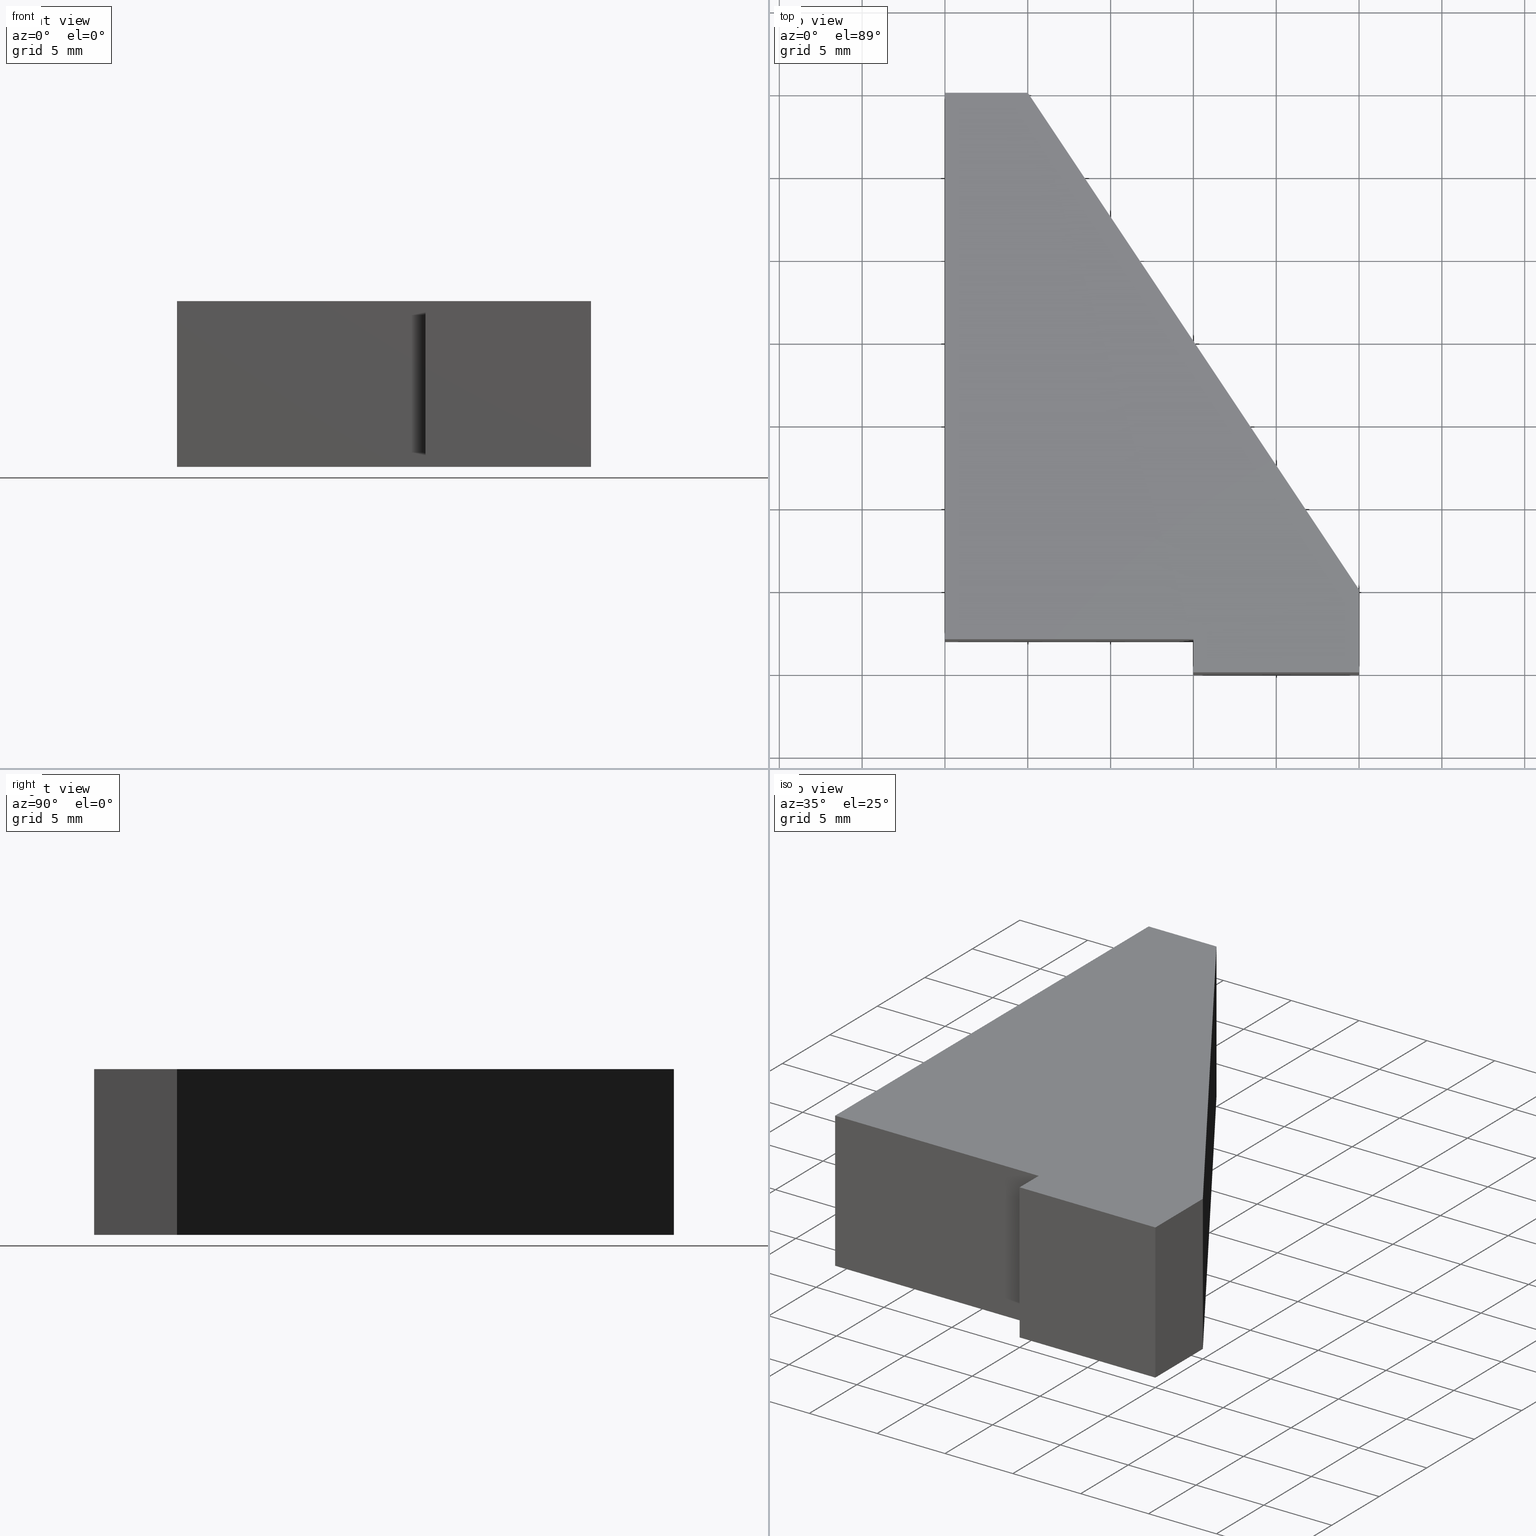
[diagram: canonical four-view strip — front | top / right | iso, engineering-drawing reading convention]
A machine part, canonical four-view strip (front | top / right | iso — engineering-drawing reading convention). The complete STEP part file that produces these views, byte-faithful:
ISO-10303-21;
HEADER;
/* Generated by software containing ST-Developer
 * from STEP Tools, Inc. (www.steptools.com) 
 */

FILE_DESCRIPTION(
/* description */ (''),
/* implementation_level */ '2;1');

FILE_NAME(
/* name */ 
'H:\\Eigene Dateien\\CAD Workspace Vault\\CAD\\E_3_Nocken\\E_3_01_Aufs
chwei\X\DFnocke\\11_Komponente\\E_3_01_11_00_00_WKZ-0210.stp',
/* time_stamp */ '2021-04-21T12:49:18+02:00',
/* author */ ('DFischer'),
/* organization */ (''),
/* preprocessor_version */ 'ST-DEVELOPER v16.13',
/* originating_system */ 'Autodesk Inventor 2018',
/* authorisation */ '');

FILE_SCHEMA (('AUTOMOTIVE_DESIGN { 1 0 10303 214 3 1 1 }'));
ENDSEC;

DATA;
#10=MECHANICAL_DESIGN_GEOMETRIC_PRESENTATION_REPRESENTATION('',(#13),#288);
#11=SHAPE_REPRESENTATION_RELATIONSHIP('SRR','None',#295,#12);
#12=ADVANCED_BREP_SHAPE_REPRESENTATION('',(#14),#287);
#13=STYLED_ITEM('',(#304),#14);
#14=MANIFOLD_SOLID_BREP('Volumenk\X\F6rper1',#170);
#15=FACE_OUTER_BOUND('',#24,.T.);
#16=FACE_OUTER_BOUND('',#25,.T.);
#17=FACE_OUTER_BOUND('',#26,.T.);
#18=FACE_OUTER_BOUND('',#27,.T.);
#19=FACE_OUTER_BOUND('',#28,.T.);
#20=FACE_OUTER_BOUND('',#29,.T.);
#21=FACE_OUTER_BOUND('',#30,.T.);
#22=FACE_OUTER_BOUND('',#31,.T.);
#23=FACE_OUTER_BOUND('',#32,.T.);
#24=EDGE_LOOP('',(#110,#111,#112,#113,#114,#115,#116));
#25=EDGE_LOOP('',(#117,#118,#119,#120));
#26=EDGE_LOOP('',(#121,#122,#123,#124));
#27=EDGE_LOOP('',(#125,#126,#127,#128));
#28=EDGE_LOOP('',(#129,#130,#131,#132));
#29=EDGE_LOOP('',(#133,#134,#135,#136));
#30=EDGE_LOOP('',(#137,#138,#139,#140));
#31=EDGE_LOOP('',(#141,#142,#143,#144));
#32=EDGE_LOOP('',(#145,#146,#147,#148,#149,#150,#151));
#33=LINE('',#244,#54);
#34=LINE('',#246,#55);
#35=LINE('',#248,#56);
#36=LINE('',#250,#57);
#37=LINE('',#252,#58);
#38=LINE('',#254,#59);
#39=LINE('',#255,#60);
#40=LINE('',#259,#61);
#41=LINE('',#260,#62);
#42=LINE('',#261,#63);
#43=LINE('',#264,#64);
#44=LINE('',#265,#65);
#45=LINE('',#268,#66);
#46=LINE('',#269,#67);
#47=LINE('',#272,#68);
#48=LINE('',#273,#69);
#49=LINE('',#276,#70);
#50=LINE('',#277,#71);
#51=LINE('',#280,#72);
#52=LINE('',#281,#73);
#53=LINE('',#283,#74);
#54=VECTOR('',#203,10.);
#55=VECTOR('',#204,10.);
#56=VECTOR('',#205,10.);
#57=VECTOR('',#206,10.);
#58=VECTOR('',#207,10.);
#59=VECTOR('',#208,10.);
#60=VECTOR('',#209,10.);
#61=VECTOR('',#212,10.);
#62=VECTOR('',#213,10.);
#63=VECTOR('',#214,10.);
#64=VECTOR('',#217,10.);
#65=VECTOR('',#218,10.);
#66=VECTOR('',#221,10.);
#67=VECTOR('',#222,10.);
#68=VECTOR('',#225,10.);
#69=VECTOR('',#226,10.);
#70=VECTOR('',#229,10.);
#71=VECTOR('',#230,10.);
#72=VECTOR('',#233,10.);
#73=VECTOR('',#234,10.);
#74=VECTOR('',#237,10.);
#75=VERTEX_POINT('',#242);
#76=VERTEX_POINT('',#243);
#77=VERTEX_POINT('',#245);
#78=VERTEX_POINT('',#247);
#79=VERTEX_POINT('',#249);
#80=VERTEX_POINT('',#251);
#81=VERTEX_POINT('',#253);
#82=VERTEX_POINT('',#257);
#83=VERTEX_POINT('',#258);
#84=VERTEX_POINT('',#263);
#85=VERTEX_POINT('',#267);
#86=VERTEX_POINT('',#271);
#87=VERTEX_POINT('',#275);
#88=VERTEX_POINT('',#279);
#89=EDGE_CURVE('',#75,#76,#33,.T.);
#90=EDGE_CURVE('',#77,#75,#34,.T.);
#91=EDGE_CURVE('',#78,#77,#35,.T.);
#92=EDGE_CURVE('',#79,#78,#36,.T.);
#93=EDGE_CURVE('',#80,#79,#37,.T.);
#94=EDGE_CURVE('',#81,#80,#38,.T.);
#95=EDGE_CURVE('',#76,#81,#39,.T.);
#96=EDGE_CURVE('',#82,#83,#40,.T.);
#97=EDGE_CURVE('',#83,#78,#41,.T.);
#98=EDGE_CURVE('',#82,#77,#42,.T.);
#99=EDGE_CURVE('',#83,#84,#43,.T.);
#100=EDGE_CURVE('',#84,#79,#44,.T.);
#101=EDGE_CURVE('',#84,#85,#45,.T.);
#102=EDGE_CURVE('',#85,#80,#46,.T.);
#103=EDGE_CURVE('',#85,#86,#47,.T.);
#104=EDGE_CURVE('',#86,#81,#48,.T.);
#105=EDGE_CURVE('',#86,#87,#49,.T.);
#106=EDGE_CURVE('',#87,#76,#50,.T.);
#107=EDGE_CURVE('',#87,#88,#51,.T.);
#108=EDGE_CURVE('',#75,#88,#52,.T.);
#109=EDGE_CURVE('',#88,#82,#53,.T.);
#110=ORIENTED_EDGE('',*,*,#89,.F.);
#111=ORIENTED_EDGE('',*,*,#90,.F.);
#112=ORIENTED_EDGE('',*,*,#91,.F.);
#113=ORIENTED_EDGE('',*,*,#92,.F.);
#114=ORIENTED_EDGE('',*,*,#93,.F.);
#115=ORIENTED_EDGE('',*,*,#94,.F.);
#116=ORIENTED_EDGE('',*,*,#95,.F.);
#117=ORIENTED_EDGE('',*,*,#96,.T.);
#118=ORIENTED_EDGE('',*,*,#97,.T.);
#119=ORIENTED_EDGE('',*,*,#91,.T.);
#120=ORIENTED_EDGE('',*,*,#98,.F.);
#121=ORIENTED_EDGE('',*,*,#99,.T.);
#122=ORIENTED_EDGE('',*,*,#100,.T.);
#123=ORIENTED_EDGE('',*,*,#92,.T.);
#124=ORIENTED_EDGE('',*,*,#97,.F.);
#125=ORIENTED_EDGE('',*,*,#101,.T.);
#126=ORIENTED_EDGE('',*,*,#102,.T.);
#127=ORIENTED_EDGE('',*,*,#93,.T.);
#128=ORIENTED_EDGE('',*,*,#100,.F.);
#129=ORIENTED_EDGE('',*,*,#103,.T.);
#130=ORIENTED_EDGE('',*,*,#104,.T.);
#131=ORIENTED_EDGE('',*,*,#94,.T.);
#132=ORIENTED_EDGE('',*,*,#102,.F.);
#133=ORIENTED_EDGE('',*,*,#105,.T.);
#134=ORIENTED_EDGE('',*,*,#106,.T.);
#135=ORIENTED_EDGE('',*,*,#95,.T.);
#136=ORIENTED_EDGE('',*,*,#104,.F.);
#137=ORIENTED_EDGE('',*,*,#107,.T.);
#138=ORIENTED_EDGE('',*,*,#108,.F.);
#139=ORIENTED_EDGE('',*,*,#89,.T.);
#140=ORIENTED_EDGE('',*,*,#106,.F.);
#141=ORIENTED_EDGE('',*,*,#109,.T.);
#142=ORIENTED_EDGE('',*,*,#98,.T.);
#143=ORIENTED_EDGE('',*,*,#90,.T.);
#144=ORIENTED_EDGE('',*,*,#108,.T.);
#145=ORIENTED_EDGE('',*,*,#96,.F.);
#146=ORIENTED_EDGE('',*,*,#109,.F.);
#147=ORIENTED_EDGE('',*,*,#107,.F.);
#148=ORIENTED_EDGE('',*,*,#105,.F.);
#149=ORIENTED_EDGE('',*,*,#103,.F.);
#150=ORIENTED_EDGE('',*,*,#101,.F.);
#151=ORIENTED_EDGE('',*,*,#99,.F.);
#152=PLANE('',#190);
#153=PLANE('',#191);
#154=PLANE('',#192);
#155=PLANE('',#193);
#156=PLANE('',#194);
#157=PLANE('',#195);
#158=PLANE('',#196);
#159=PLANE('',#197);
#160=PLANE('',#198);
#161=ADVANCED_FACE('',(#15),#152,.F.);
#162=ADVANCED_FACE('',(#16),#153,.T.);
#163=ADVANCED_FACE('',(#17),#154,.T.);
#164=ADVANCED_FACE('',(#18),#155,.T.);
#165=ADVANCED_FACE('',(#19),#156,.T.);
#166=ADVANCED_FACE('',(#20),#157,.T.);
#167=ADVANCED_FACE('',(#21),#158,.T.);
#168=ADVANCED_FACE('',(#22),#159,.T.);
#169=ADVANCED_FACE('',(#23),#160,.T.);
#170=CLOSED_SHELL('',(#161,#162,#163,#164,#165,#166,#167,#168,#169));
#171=DERIVED_UNIT_ELEMENT(#173,0.);
#172=DERIVED_UNIT_ELEMENT(#290,0.);
#173=(
MASS_UNIT()
NAMED_UNIT(*)
SI_UNIT($,.GRAM.)
);
#174=DERIVED_UNIT((#171,#172));
#175=MEASURE_REPRESENTATION_ITEM('density measure',
POSITIVE_RATIO_MEASURE(8.03),#174);
#176=PROPERTY_DEFINITION_REPRESENTATION(#181,#178);
#177=PROPERTY_DEFINITION_REPRESENTATION(#182,#179);
#178=REPRESENTATION('material name',(#180),#287);
#179=REPRESENTATION('density',(#175),#287);
#180=DESCRIPTIVE_REPRESENTATION_ITEM('1.4301','1.4301');
#181=PROPERTY_DEFINITION('material property','material name',#297);
#182=PROPERTY_DEFINITION('material property','density of part',#297);
#183=DATE_TIME_ROLE('creation_date');
#184=APPLIED_DATE_AND_TIME_ASSIGNMENT(#185,#183,(#297));
#185=DATE_AND_TIME(#186,#187);
#186=CALENDAR_DATE(2011,17,10);
#187=LOCAL_TIME(8,20,33.,#188);
#188=COORDINATED_UNIVERSAL_TIME_OFFSET(0,0,.BEHIND.);
#189=AXIS2_PLACEMENT_3D('placement',#240,#199,#200);
#190=AXIS2_PLACEMENT_3D('',#241,#201,#202);
#191=AXIS2_PLACEMENT_3D('',#256,#210,#211);
#192=AXIS2_PLACEMENT_3D('',#262,#215,#216);
#193=AXIS2_PLACEMENT_3D('',#266,#219,#220);
#194=AXIS2_PLACEMENT_3D('',#270,#223,#224);
#195=AXIS2_PLACEMENT_3D('',#274,#227,#228);
#196=AXIS2_PLACEMENT_3D('',#278,#231,#232);
#197=AXIS2_PLACEMENT_3D('',#282,#235,#236);
#198=AXIS2_PLACEMENT_3D('',#284,#238,#239);
#199=DIRECTION('axis',(0.,0.,1.));
#200=DIRECTION('refdir',(1.,0.,0.));
#201=DIRECTION('center_axis',(0.,0.,1.));
#202=DIRECTION('ref_axis',(1.,0.,0.));
#203=DIRECTION('',(-1.83697019872103E-16,1.,0.));
#204=DIRECTION('',(1.,-1.82783065129353E-17,0.));
#205=DIRECTION('',(0.,-1.,0.));
#206=DIRECTION('',(1.,2.59052039079203E-16,0.));
#207=DIRECTION('',(0.,-1.,0.));
#208=DIRECTION('',(-1.,8.88178419700125E-16,0.));
#209=DIRECTION('',(-0.554700196225229,0.832050294337844,0.));
#210=DIRECTION('center_axis',(-1.,0.,0.));
#211=DIRECTION('ref_axis',(0.,0.,1.));
#212=DIRECTION('',(0.,1.,0.));
#213=DIRECTION('',(0.,0.,-1.));
#214=DIRECTION('',(0.,0.,-1.));
#215=DIRECTION('center_axis',(2.59052039079203E-16,-1.,0.));
#216=DIRECTION('ref_axis',(0.,0.,-1.));
#217=DIRECTION('',(-1.,-2.59052039079203E-16,0.));
#218=DIRECTION('',(0.,0.,-1.));
#219=DIRECTION('center_axis',(-1.,0.,0.));
#220=DIRECTION('ref_axis',(0.,0.,1.));
#221=DIRECTION('',(0.,1.,0.));
#222=DIRECTION('',(0.,0.,-1.));
#223=DIRECTION('center_axis',(8.88178419700125E-16,1.,0.));
#224=DIRECTION('ref_axis',(0.,0.,1.));
#225=DIRECTION('',(1.,-8.88178419700125E-16,0.));
#226=DIRECTION('',(0.,0.,-1.));
#227=DIRECTION('center_axis',(0.832050294337844,0.554700196225229,0.));
#228=DIRECTION('ref_axis',(0.,0.,-1.));
#229=DIRECTION('',(0.554700196225229,-0.832050294337844,0.));
#230=DIRECTION('',(0.,0.,-1.));
#231=DIRECTION('center_axis',(1.,1.83697019872103E-16,0.));
#232=DIRECTION('ref_axis',(0.,0.,-1.));
#233=DIRECTION('',(1.83697019872103E-16,-1.,0.));
#234=DIRECTION('',(0.,0.,1.));
#235=DIRECTION('center_axis',(-1.82783065129353E-17,-1.,0.));
#236=DIRECTION('ref_axis',(0.,0.,-1.));
#237=DIRECTION('',(-1.,1.82783065129353E-17,0.));
#238=DIRECTION('center_axis',(0.,0.,1.));
#239=DIRECTION('ref_axis',(1.,0.,0.));
#240=CARTESIAN_POINT('',(0.,0.,0.));
#241=CARTESIAN_POINT('Origin',(-15.3745438138487,14.6254561861513,-5.));
#242=CARTESIAN_POINT('',(0.,0.,-5.));
#243=CARTESIAN_POINT('',(-9.18485099360515E-16,5.,-5.));
#244=CARTESIAN_POINT('',(-9.18485099360515E-16,5.,-5.));
#245=CARTESIAN_POINT('',(-10.,1.82783065129353E-16,-5.));
#246=CARTESIAN_POINT('',(0.,0.,-5.));
#247=CARTESIAN_POINT('',(-10.,2.,-5.));
#248=CARTESIAN_POINT('',(-10.,2.77555756156289E-16,-5.));
#249=CARTESIAN_POINT('',(-25.,2.,-5.));
#250=CARTESIAN_POINT('',(-10.,2.,-5.));
#251=CARTESIAN_POINT('',(-25.,35.,-5.));
#252=CARTESIAN_POINT('',(-25.,2.,-5.));
#253=CARTESIAN_POINT('',(-20.,35.,-5.));
#254=CARTESIAN_POINT('',(-25.,35.,-5.));
#255=CARTESIAN_POINT('',(-20.,35.,-5.));
#256=CARTESIAN_POINT('Origin',(-10.,1.82783065129353E-16,0.));
#257=CARTESIAN_POINT('',(-10.,1.82783065129353E-16,5.));
#258=CARTESIAN_POINT('',(-10.,2.,5.));
#259=CARTESIAN_POINT('',(-10.,2.77555756156289E-16,5.));
#260=CARTESIAN_POINT('',(-10.,2.,0.));
#261=CARTESIAN_POINT('',(-10.,1.82783065129353E-16,0.));
#262=CARTESIAN_POINT('Origin',(-10.,2.,0.));
#263=CARTESIAN_POINT('',(-25.,2.,5.));
#264=CARTESIAN_POINT('',(-10.,2.,5.));
#265=CARTESIAN_POINT('',(-25.,2.,0.));
#266=CARTESIAN_POINT('Origin',(-25.,2.,0.));
#267=CARTESIAN_POINT('',(-25.,35.,5.));
#268=CARTESIAN_POINT('',(-25.,2.,5.));
#269=CARTESIAN_POINT('',(-25.,35.,0.));
#270=CARTESIAN_POINT('Origin',(-25.,35.,0.));
#271=CARTESIAN_POINT('',(-20.,35.,5.));
#272=CARTESIAN_POINT('',(-25.,35.,5.));
#273=CARTESIAN_POINT('',(-20.,35.,0.));
#274=CARTESIAN_POINT('Origin',(-20.,35.,0.));
#275=CARTESIAN_POINT('',(-9.18485099360515E-16,5.,5.));
#276=CARTESIAN_POINT('',(-20.,35.,5.));
#277=CARTESIAN_POINT('',(-9.18485099360515E-16,5.,0.));
#278=CARTESIAN_POINT('Origin',(-9.18485099360515E-16,5.,0.));
#279=CARTESIAN_POINT('',(0.,0.,5.));
#280=CARTESIAN_POINT('',(-9.18485099360515E-16,5.,5.));
#281=CARTESIAN_POINT('',(0.,0.,0.));
#282=CARTESIAN_POINT('Origin',(0.,0.,0.));
#283=CARTESIAN_POINT('',(0.,0.,5.));
#284=CARTESIAN_POINT('Origin',(-15.3745438138487,14.6254561861513,5.));
#285=UNCERTAINTY_MEASURE_WITH_UNIT(LENGTH_MEASURE(0.01),#289,
'DISTANCE_ACCURACY_VALUE',
'Maximum model space distance between geometric entities at asserted c
onnectivities');
#286=UNCERTAINTY_MEASURE_WITH_UNIT(LENGTH_MEASURE(0.01),#289,
'DISTANCE_ACCURACY_VALUE',
'Maximum model space distance between geometric entities at asserted c
onnectivities');
#287=(
GEOMETRIC_REPRESENTATION_CONTEXT(3)
GLOBAL_UNCERTAINTY_ASSIGNED_CONTEXT((#285))
GLOBAL_UNIT_ASSIGNED_CONTEXT((#289,#292,#291))
REPRESENTATION_CONTEXT('','3D')
);
#288=(
GEOMETRIC_REPRESENTATION_CONTEXT(3)
GLOBAL_UNCERTAINTY_ASSIGNED_CONTEXT((#286))
GLOBAL_UNIT_ASSIGNED_CONTEXT((#289,#292,#291))
REPRESENTATION_CONTEXT('','3D')
);
#289=(
LENGTH_UNIT()
NAMED_UNIT(*)
SI_UNIT(.MILLI.,.METRE.)
);
#290=(
LENGTH_UNIT()
NAMED_UNIT(*)
SI_UNIT(.CENTI.,.METRE.)
);
#291=(
NAMED_UNIT(*)
SI_UNIT($,.STERADIAN.)
SOLID_ANGLE_UNIT()
);
#292=(
NAMED_UNIT(*)
PLANE_ANGLE_UNIT()
SI_UNIT($,.RADIAN.)
);
#293=SHAPE_DEFINITION_REPRESENTATION(#294,#295);
#294=PRODUCT_DEFINITION_SHAPE('',$,#297);
#295=SHAPE_REPRESENTATION('',(#189),#287);
#296=PRODUCT_DEFINITION_CONTEXT('part definition',#301,'design');
#297=PRODUCT_DEFINITION('WKZ-0210','E_3_01_11_00_00_WKZ-0210',#298,#296);
#298=PRODUCT_DEFINITION_FORMATION('',$,#303);
#299=PRODUCT_RELATED_PRODUCT_CATEGORY('E_3_01_11_00_00_WKZ-0210',
'E_3_01_11_00_00_WKZ-0210',(#303));
#300=APPLICATION_PROTOCOL_DEFINITION('international standard',
'automotive_design',2009,#301);
#301=APPLICATION_CONTEXT(
'Core Data for Automotive Mechanical Design Process');
#302=PRODUCT_CONTEXT('part definition',#301,'mechanical');
#303=PRODUCT('WKZ-0210','E_3_01_11_00_00_WKZ-0210',$,(#302));
#304=PRESENTATION_STYLE_ASSIGNMENT((#305));
#305=SURFACE_STYLE_USAGE(.BOTH.,#306);
#306=SURFACE_SIDE_STYLE('',(#307));
#307=SURFACE_STYLE_FILL_AREA(#308);
#308=FILL_AREA_STYLE('',(#309));
#309=FILL_AREA_STYLE_COLOUR('',#310);
#310=COLOUR_RGB('',0.92156862745098,0.92156862745098,0.92156862745098);
ENDSEC;
END-ISO-10303-21;
